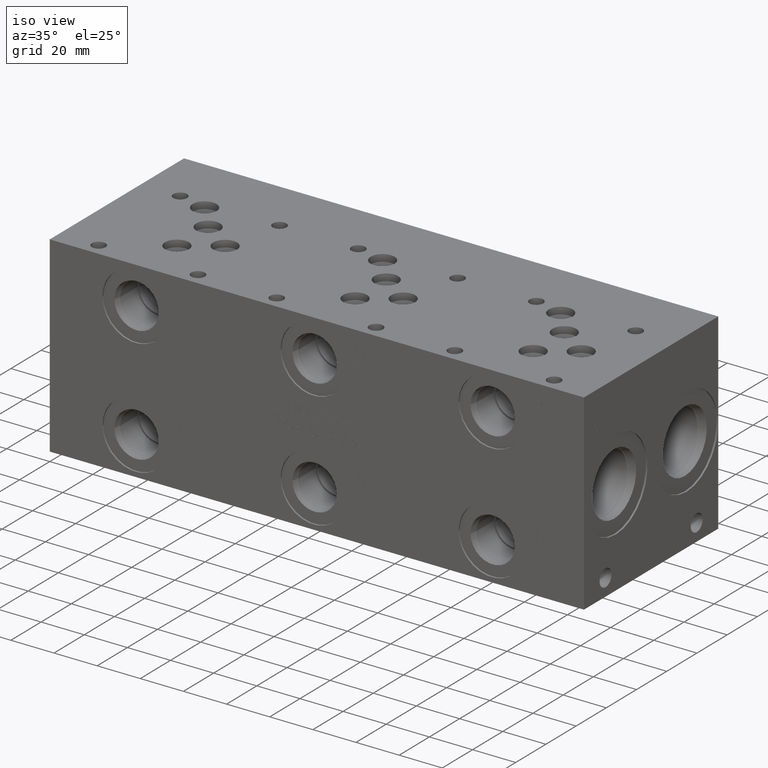
[diagram: clean part render]
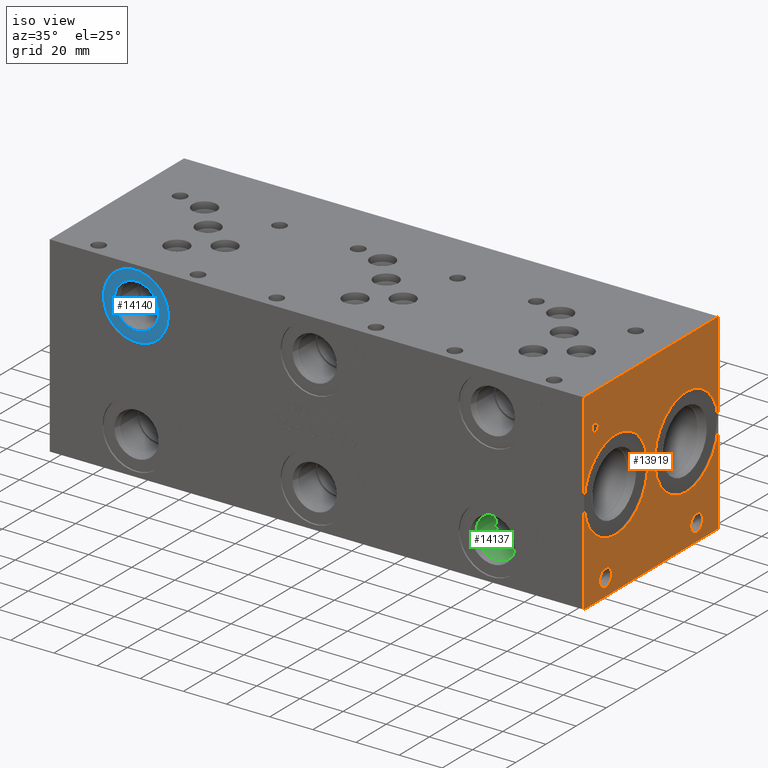
[diagram: same view with three faces highlighted in distinct colors, each labeled with its STEP entity id]
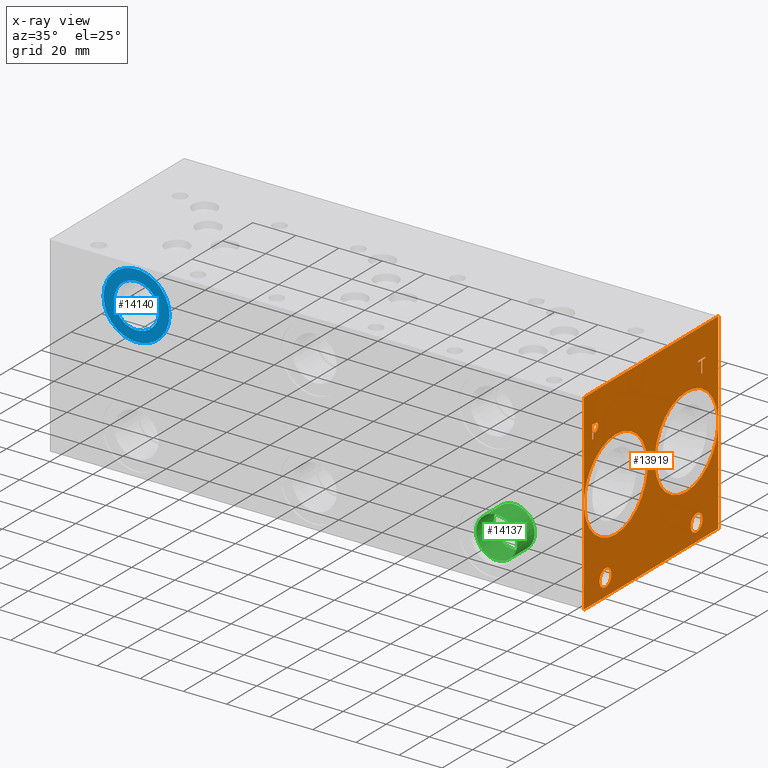
[diagram: x-ray of the same camera — body ghosted, the three highlighted faces saturated]
A machine part, iso view with three faces highlighted in distinct colors.
The next image is the same camera in x-ray (body ghosted, the three faces saturated) — at least one of them is partly hidden behind the body in this view.
Their STEP definitions:

[orange] entity #13919 — the highlighted planar face has unit normal (1, 0, 0).
#369=CIRCLE('',#14537,21.0185);
#370=CIRCLE('',#14538,21.0185);
#371=CIRCLE('',#14539,21.0185);
#372=CIRCLE('',#14540,21.0185);
#373=CIRCLE('',#14541,3.9624);
#374=CIRCLE('',#14542,3.9624);
#375=CIRCLE('',#14543,3.9624);
#376=CIRCLE('',#14544,3.9624);
#1005=B_SPLINE_CURVE_WITH_KNOTS('',2,(#22557,#22558,#22559,#22560),
 .UNSPECIFIED.,.F.,.F.,(3,1,3),(0.,1.,2.),.UNSPECIFIED.);
#1007=B_SPLINE_CURVE_WITH_KNOTS('',2,(#22578,#22579,#22580,#22581),
 .UNSPECIFIED.,.F.,.F.,(3,1,3),(0.,1.,2.),.UNSPECIFIED.);
#1009=B_SPLINE_CURVE_WITH_KNOTS('',2,(#22627,#22628,#22629,#22630),
 .UNSPECIFIED.,.F.,.F.,(3,1,3),(0.,1.,2.),.UNSPECIFIED.);
#1011=B_SPLINE_CURVE_WITH_KNOTS('',2,(#22645,#22646,#22647,#22648),
 .UNSPECIFIED.,.F.,.F.,(3,1,3),(0.,1.,2.),.UNSPECIFIED.);
#1119=FACE_BOUND('',#2414,.T.);
#1120=FACE_BOUND('',#2415,.T.);
#1121=FACE_BOUND('',#2416,.T.);
#1122=FACE_BOUND('',#2417,.T.);
#1123=FACE_BOUND('',#2418,.T.);
#1124=FACE_BOUND('',#2419,.T.);
#1631=FACE_OUTER_BOUND('',#2413,.T.);
#2413=EDGE_LOOP('',(#11025,#11026,#11027,#11028));
#2414=EDGE_LOOP('',(#11029,#11030,#11031,#11032,#11033,#11034,#11035,#11036));
#2415=EDGE_LOOP('',(#11037,#11038));
#2416=EDGE_LOOP('',(#11039,#11040));
#2417=EDGE_LOOP('',(#11041,#11042));
#2418=EDGE_LOOP('',(#11043,#11044));
#2419=EDGE_LOOP('',(#11045,#11046,#11047,#11048,#11049,#11050,#11051,#11052,
#11053));
#2829=LINE('',#18293,#4084);
#3638=LINE('',#22358,#4893);
#3642=LINE('',#22366,#4897);
#3645=LINE('',#22372,#4900);
#3648=LINE('',#22378,#4903);
#3651=LINE('',#22384,#4906);
#3654=LINE('',#22390,#4909);
#3657=LINE('',#22396,#4912);
#3660=LINE('',#22401,#4915);
#3702=LINE('',#22590,#4957);
#3705=LINE('',#22596,#4960);
#3708=LINE('',#22602,#4963);
#3711=LINE('',#22608,#4966);
#3714=LINE('',#22614,#4969);
#3718=LINE('',#22656,#4973);
#3719=LINE('',#22658,#4974);
#3720=LINE('',#22659,#4975);
#4084=VECTOR('',#15207,10.);
#4893=VECTOR('',#16538,10.);
#4897=VECTOR('',#16544,10.);
#4900=VECTOR('',#16549,10.);
#4903=VECTOR('',#16554,10.);
#4906=VECTOR('',#16559,10.);
#4909=VECTOR('',#16564,10.);
#4912=VECTOR('',#16569,10.);
#4915=VECTOR('',#16574,10.);
#4957=VECTOR('',#16644,10.);
#4960=VECTOR('',#16649,10.);
#4963=VECTOR('',#16654,10.);
#4966=VECTOR('',#16659,10.);
#4969=VECTOR('',#16664,10.);
#4973=VECTOR('',#16672,10.);
#4974=VECTOR('',#16673,10.);
#4975=VECTOR('',#16674,10.);
#5328=VERTEX_POINT('',#18290);
#5329=VERTEX_POINT('',#18292);
#6083=VERTEX_POINT('',#22356);
#6084=VERTEX_POINT('',#22357);
#6087=VERTEX_POINT('',#22365);
#6089=VERTEX_POINT('',#22371);
#6091=VERTEX_POINT('',#22377);
#6093=VERTEX_POINT('',#22383);
#6095=VERTEX_POINT('',#22389);
#6097=VERTEX_POINT('',#22395);
#6129=VERTEX_POINT('',#22555);
#6130=VERTEX_POINT('',#22556);
#6133=VERTEX_POINT('',#22577);
#6135=VERTEX_POINT('',#22589);
#6137=VERTEX_POINT('',#22595);
#6139=VERTEX_POINT('',#22601);
#6141=VERTEX_POINT('',#22607);
#6143=VERTEX_POINT('',#22613);
#6145=VERTEX_POINT('',#22626);
#6147=VERTEX_POINT('',#22655);
#6148=VERTEX_POINT('',#22657);
#6149=VERTEX_POINT('',#22660);
#6150=VERTEX_POINT('',#22661);
#6151=VERTEX_POINT('',#22664);
#6152=VERTEX_POINT('',#22665);
#6153=VERTEX_POINT('',#22668);
#6154=VERTEX_POINT('',#22669);
#6155=VERTEX_POINT('',#22672);
#6156=VERTEX_POINT('',#22673);
#6701=EDGE_CURVE('',#5328,#5329,#2829,.T.);
#7808=EDGE_CURVE('',#6083,#6084,#3638,.T.);
#7812=EDGE_CURVE('',#6087,#6083,#3642,.T.);
#7815=EDGE_CURVE('',#6089,#6087,#3645,.T.);
#7818=EDGE_CURVE('',#6091,#6089,#3648,.T.);
#7821=EDGE_CURVE('',#6093,#6091,#3651,.T.);
#7824=EDGE_CURVE('',#6095,#6093,#3654,.T.);
#7827=EDGE_CURVE('',#6097,#6095,#3657,.T.);
#7830=EDGE_CURVE('',#6084,#6097,#3660,.T.);
#7877=EDGE_CURVE('',#6129,#6130,#1005,.T.);
#7881=EDGE_CURVE('',#6133,#6129,#1007,.T.);
#7884=EDGE_CURVE('',#6135,#6133,#3702,.T.);
#7887=EDGE_CURVE('',#6137,#6135,#3705,.T.);
#7890=EDGE_CURVE('',#6139,#6137,#3708,.T.);
#7893=EDGE_CURVE('',#6141,#6139,#3711,.T.);
#7896=EDGE_CURVE('',#6143,#6141,#3714,.T.);
#7899=EDGE_CURVE('',#6145,#6143,#1009,.T.);
#7902=EDGE_CURVE('',#6130,#6145,#1011,.T.);
#7904=EDGE_CURVE('',#5328,#6147,#3718,.T.);
#7905=EDGE_CURVE('',#6147,#6148,#3719,.T.);
#7906=EDGE_CURVE('',#5329,#6148,#3720,.T.);
#7907=EDGE_CURVE('',#6149,#6150,#369,.T.);
#7908=EDGE_CURVE('',#6150,#6149,#370,.T.);
#7909=EDGE_CURVE('',#6151,#6152,#371,.T.);
#7910=EDGE_CURVE('',#6152,#6151,#372,.T.);
#7911=EDGE_CURVE('',#6153,#6154,#373,.T.);
#7912=EDGE_CURVE('',#6154,#6153,#374,.T.);
#7913=EDGE_CURVE('',#6155,#6156,#375,.T.);
#7914=EDGE_CURVE('',#6156,#6155,#376,.T.);
#11025=ORIENTED_EDGE('',*,*,#7904,.T.);
#11026=ORIENTED_EDGE('',*,*,#7905,.T.);
#11027=ORIENTED_EDGE('',*,*,#7906,.F.);
#11028=ORIENTED_EDGE('',*,*,#6701,.F.);
#11029=ORIENTED_EDGE('',*,*,#7808,.T.);
#11030=ORIENTED_EDGE('',*,*,#7830,.T.);
#11031=ORIENTED_EDGE('',*,*,#7827,.T.);
#11032=ORIENTED_EDGE('',*,*,#7824,.T.);
#11033=ORIENTED_EDGE('',*,*,#7821,.T.);
#11034=ORIENTED_EDGE('',*,*,#7818,.T.);
#11035=ORIENTED_EDGE('',*,*,#7815,.T.);
#11036=ORIENTED_EDGE('',*,*,#7812,.T.);
#11037=ORIENTED_EDGE('',*,*,#7907,.T.);
#11038=ORIENTED_EDGE('',*,*,#7908,.T.);
#11039=ORIENTED_EDGE('',*,*,#7909,.T.);
#11040=ORIENTED_EDGE('',*,*,#7910,.T.);
#11041=ORIENTED_EDGE('',*,*,#7911,.T.);
#11042=ORIENTED_EDGE('',*,*,#7912,.T.);
#11043=ORIENTED_EDGE('',*,*,#7913,.T.);
#11044=ORIENTED_EDGE('',*,*,#7914,.T.);
#11045=ORIENTED_EDGE('',*,*,#7877,.T.);
#11046=ORIENTED_EDGE('',*,*,#7902,.T.);
#11047=ORIENTED_EDGE('',*,*,#7899,.T.);
#11048=ORIENTED_EDGE('',*,*,#7896,.T.);
#11049=ORIENTED_EDGE('',*,*,#7893,.T.);
#11050=ORIENTED_EDGE('',*,*,#7890,.T.);
#11051=ORIENTED_EDGE('',*,*,#7887,.T.);
#11052=ORIENTED_EDGE('',*,*,#7884,.T.);
#11053=ORIENTED_EDGE('',*,*,#7881,.T.);
#12868=PLANE('',#14536);
#13919=ADVANCED_FACE('',(#1631,#1119,#1120,#1121,#1122,#1123,#1124),#12868,
 .T.);
#14536=AXIS2_PLACEMENT_3D('',#22654,#16670,#16671);
#14537=AXIS2_PLACEMENT_3D('',#22662,#16675,#16676);
#14538=AXIS2_PLACEMENT_3D('',#22663,#16677,#16678);
#14539=AXIS2_PLACEMENT_3D('',#22666,#16679,#16680);
#14540=AXIS2_PLACEMENT_3D('',#22667,#16681,#16682);
#14541=AXIS2_PLACEMENT_3D('',#22670,#16683,#16684);
#14542=AXIS2_PLACEMENT_3D('',#22671,#16685,#16686);
#14543=AXIS2_PLACEMENT_3D('',#22674,#16687,#16688);
#14544=AXIS2_PLACEMENT_3D('',#22675,#16689,#16690);
#15207=DIRECTION('',(0.,0.,1.));
#16538=DIRECTION('',(0.,-1.,0.));
#16544=DIRECTION('',(0.,0.,-1.));
#16549=DIRECTION('',(0.,-1.,0.));
#16554=DIRECTION('',(0.,0.,-1.));
#16559=DIRECTION('',(0.,1.,0.));
#16564=DIRECTION('',(0.,0.,1.));
#16569=DIRECTION('',(0.,-1.,0.));
#16574=DIRECTION('',(0.,0.,1.));
#16644=DIRECTION('',(0.,1.,0.));
#16649=DIRECTION('',(0.,0.,1.));
#16654=DIRECTION('',(0.,-1.,0.));
#16659=DIRECTION('',(0.,0.,-1.));
#16664=DIRECTION('',(0.,-1.,0.));
#16670=DIRECTION('center_axis',(1.,0.,0.));
#16671=DIRECTION('ref_axis',(0.,1.,0.));
#16672=DIRECTION('',(0.,1.,0.));
#16673=DIRECTION('',(0.,0.,1.));
#16674=DIRECTION('',(0.,1.,0.));
#16675=DIRECTION('center_axis',(-1.,0.,0.));
#16676=DIRECTION('ref_axis',(0.,0.,-1.));
#16677=DIRECTION('center_axis',(-1.,0.,0.));
#16678=DIRECTION('ref_axis',(0.,0.,-1.));
#16679=DIRECTION('center_axis',(-1.,0.,0.));
#16680=DIRECTION('ref_axis',(0.,0.,-1.));
#16681=DIRECTION('center_axis',(-1.,0.,0.));
#16682=DIRECTION('ref_axis',(0.,0.,-1.));
#16683=DIRECTION('center_axis',(-1.,0.,0.));
#16684=DIRECTION('ref_axis',(0.,1.,0.));
#16685=DIRECTION('center_axis',(-1.,0.,0.));
#16686=DIRECTION('ref_axis',(0.,1.,0.));
#16687=DIRECTION('center_axis',(-1.,0.,0.));
#16688=DIRECTION('ref_axis',(0.,1.,0.));
#16689=DIRECTION('center_axis',(-1.,0.,0.));
#16690=DIRECTION('ref_axis',(0.,1.,0.));
#18290=CARTESIAN_POINT('',(247.65,0.,0.));
#18292=CARTESIAN_POINT('',(247.65,0.,88.9));
#18293=CARTESIAN_POINT('',(247.65,0.,0.));
#22356=CARTESIAN_POINT('',(247.65,78.375415271453,69.05625));
#22357=CARTESIAN_POINT('',(247.65,77.5314930799135,69.05625));
#22358=CARTESIAN_POINT('',(247.65,39.1877076357265,69.05625));
#22365=CARTESIAN_POINT('',(247.65,78.375415271453,74.6549533194816));
#22366=CARTESIAN_POINT('',(247.65,78.375415271453,37.3274766597408));
#22371=CARTESIAN_POINT('',(247.65,80.5058042183881,74.6549533194816));
#22372=CARTESIAN_POINT('',(247.65,40.252902109194,74.6549533194816));
#22377=CARTESIAN_POINT('',(247.65,80.5058042183881,75.4062499046326));
#22378=CARTESIAN_POINT('',(247.65,80.5058042183881,37.7031249523163));
#22383=CARTESIAN_POINT('',(247.65,75.4011041329784,75.4062499046326));
#22384=CARTESIAN_POINT('',(247.65,37.7005520664892,75.4062499046326));
#22389=CARTESIAN_POINT('',(247.65,75.4011041329784,74.6549533194816));
#22390=CARTESIAN_POINT('',(247.65,75.4011041329784,37.3274766597408));
#22395=CARTESIAN_POINT('',(247.65,77.5314930799135,74.6549533194816));
#22396=CARTESIAN_POINT('',(247.65,38.7657465399567,74.6549533194816));
#22401=CARTESIAN_POINT('',(247.65,77.5314930799135,34.528125));
#22555=CARTESIAN_POINT('',(247.65,8.66306720235939,75.0100181439707));
#22556=CARTESIAN_POINT('',(247.65,9.41950965453199,73.491987372604));
#22557=CARTESIAN_POINT('Ctrl Pts',(247.65,8.66306720235939,75.0100181439707));
#22558=CARTESIAN_POINT('Ctrl Pts',(247.65,9.01813202684857,74.7681623939564));
#22559=CARTESIAN_POINT('Ctrl Pts',(247.65,9.41950965453199,74.0220116758269));
#22560=CARTESIAN_POINT('Ctrl Pts',(247.65,9.41950965453199,73.491987372604));
#22577=CARTESIAN_POINT('',(247.65,7.0009521543883,75.4062499046326));
#22578=CARTESIAN_POINT('Ctrl Pts',(247.65,7.0009521543883,75.4062499046326));
#22579=CARTESIAN_POINT('Ctrl Pts',(247.65,7.56699752676236,75.4062499046326));
#22580=CARTESIAN_POINT('Ctrl Pts',(247.65,8.35946104808603,75.2209986918556));
#22581=CARTESIAN_POINT('Ctrl Pts',(247.65,8.66306720235939,75.0100181439707));
#22589=CARTESIAN_POINT('',(247.65,5.40573337769779,75.4062499046326));
#22590=CARTESIAN_POINT('',(247.65,2.70286668884889,75.4062499046326));
#22595=CARTESIAN_POINT('',(247.65,5.40573337769779,69.05625));
#22596=CARTESIAN_POINT('',(247.65,5.40573337769779,34.528125));
#22601=CARTESIAN_POINT('',(247.65,6.24965556923729,69.05625));
#22602=CARTESIAN_POINT('',(247.65,3.12482778461864,69.05625));
#22607=CARTESIAN_POINT('',(247.65,6.24965556923729,71.4233488299279));
#22608=CARTESIAN_POINT('',(247.65,6.24965556923729,35.7116744149639));
#22613=CARTESIAN_POINT('',(247.65,6.96493108523723,71.4233488299279));
#22614=CARTESIAN_POINT('',(247.65,3.48246554261861,71.4233488299279));
#22626=CARTESIAN_POINT('',(247.65,8.8637560162011,72.0820198086904));
#22627=CARTESIAN_POINT('Ctrl Pts',(247.65,8.8637560162011,72.0820198086904));
#22628=CARTESIAN_POINT('Ctrl Pts',(247.65,8.53442052681983,71.7578301863307));
#22629=CARTESIAN_POINT('Ctrl Pts',(247.65,7.64418553208609,71.4233488299279));
#22630=CARTESIAN_POINT('Ctrl Pts',(247.65,6.96493108523723,71.4233488299279));
#22645=CARTESIAN_POINT('Ctrl Pts',(247.65,9.41950965453199,73.491987372604));
#22646=CARTESIAN_POINT('Ctrl Pts',(247.65,9.41950965453199,73.0803180108774));
#22647=CARTESIAN_POINT('Ctrl Pts',(247.65,9.1261952343018,72.3393131597695));
#22648=CARTESIAN_POINT('Ctrl Pts',(247.65,8.8637560162011,72.0820198086904));
#22654=CARTESIAN_POINT('Origin',(247.65,0.,0.));
#22655=CARTESIAN_POINT('',(247.65,88.9,0.));
#22656=CARTESIAN_POINT('',(247.65,0.,0.));
#22657=CARTESIAN_POINT('',(247.65,88.9,88.9));
#22658=CARTESIAN_POINT('',(247.65,88.9,0.));
#22659=CARTESIAN_POINT('',(247.65,0.,88.9));
#22660=CARTESIAN_POINT('',(247.65,21.082,23.4315));
#22661=CARTESIAN_POINT('',(247.65,21.082,65.4685));
#22662=CARTESIAN_POINT('Origin',(247.65,21.082,44.45));
#22663=CARTESIAN_POINT('Origin',(247.65,21.082,44.45));
#22664=CARTESIAN_POINT('',(247.65,67.818,23.4315));
#22665=CARTESIAN_POINT('',(247.65,67.818,65.4685));
#22666=CARTESIAN_POINT('Origin',(247.65,67.818,44.45));
#22667=CARTESIAN_POINT('Origin',(247.65,67.818,44.45));
#22668=CARTESIAN_POINT('',(247.65,78.5876,7.9248));
#22669=CARTESIAN_POINT('',(247.65,70.6628,7.9248));
#22670=CARTESIAN_POINT('Origin',(247.65,74.6252,7.9248));
#22671=CARTESIAN_POINT('Origin',(247.65,74.6252,7.9248));
#22672=CARTESIAN_POINT('',(247.65,18.2372,7.9248));
#22673=CARTESIAN_POINT('',(247.65,10.3124,7.9248));
#22674=CARTESIAN_POINT('Origin',(247.65,14.2748,7.9248));
#22675=CARTESIAN_POINT('Origin',(247.65,14.2748,7.9248));

[blue] entity #14140 — the highlighted planar face has unit normal (0, 1, 0).
#571=CIRCLE('',#14923,15.3162);
#572=CIRCLE('',#14924,15.3162);
#573=CIRCLE('',#14926,10.2997);
#574=CIRCLE('',#14927,10.2997);
#1161=FACE_BOUND('',#2677,.T.);
#1852=FACE_OUTER_BOUND('',#2676,.T.);
#2676=EDGE_LOOP('',(#12142,#12143));
#2677=EDGE_LOOP('',(#12144,#12145));
#6503=VERTEX_POINT('',#24191);
#6504=VERTEX_POINT('',#24193);
#6505=VERTEX_POINT('',#24197);
#6506=VERTEX_POINT('',#24198);
#8433=EDGE_CURVE('',#6503,#6504,#571,.T.);
#8434=EDGE_CURVE('',#6504,#6503,#572,.T.);
#8435=EDGE_CURVE('',#6505,#6506,#573,.T.);
#8436=EDGE_CURVE('',#6506,#6505,#574,.T.);
#12142=ORIENTED_EDGE('',*,*,#8434,.F.);
#12143=ORIENTED_EDGE('',*,*,#8433,.F.);
#12144=ORIENTED_EDGE('',*,*,#8435,.T.);
#12145=ORIENTED_EDGE('',*,*,#8436,.T.);
#12954=PLANE('',#14925);
#14140=ADVANCED_FACE('',(#1852,#1161),#12954,.F.);
#14923=AXIS2_PLACEMENT_3D('',#24194,#17711,#17712);
#14924=AXIS2_PLACEMENT_3D('',#24195,#17713,#17714);
#14925=AXIS2_PLACEMENT_3D('',#24196,#17715,#17716);
#14926=AXIS2_PLACEMENT_3D('',#24199,#17717,#17718);
#14927=AXIS2_PLACEMENT_3D('',#24200,#17719,#17720);
#17711=DIRECTION('center_axis',(0.,1.,0.));
#17712=DIRECTION('ref_axis',(1.,0.,0.));
#17713=DIRECTION('center_axis',(0.,1.,0.));
#17714=DIRECTION('ref_axis',(1.,0.,0.));
#17715=DIRECTION('center_axis',(0.,1.,0.));
#17716=DIRECTION('ref_axis',(0.,0.,1.));
#17717=DIRECTION('center_axis',(0.,1.,0.));
#17718=DIRECTION('ref_axis',(1.,0.,0.));
#17719=DIRECTION('center_axis',(0.,1.,0.));
#17720=DIRECTION('ref_axis',(1.,0.,0.));
#24191=CARTESIAN_POINT('',(24.3586,0.7874,71.4248));
#24193=CARTESIAN_POINT('',(54.991,0.7874,71.4248));
#24194=CARTESIAN_POINT('Origin',(39.6748,0.7874,71.4248));
#24195=CARTESIAN_POINT('Origin',(39.6748,0.7874,71.4248));
#24196=CARTESIAN_POINT('Origin',(49.9745,0.7874,71.4248));
#24197=CARTESIAN_POINT('',(49.9745,0.7874,71.4248));
#24198=CARTESIAN_POINT('',(29.3751,0.787400000000001,71.4248));
#24199=CARTESIAN_POINT('Origin',(39.6748,0.7874,71.4248));
#24200=CARTESIAN_POINT('Origin',(39.6748,0.7874,71.4248));

[green] entity #14137 — the highlighted cylindrical surface (bore or boss wall) has radius 9.525 mm, axis along (0, -1, 0).
#136=CYLINDRICAL_SURFACE('',#14920,9.525);
#393=CIRCLE('',#14628,9.525);
#568=CIRCLE('',#14917,9.525);
#569=CIRCLE('',#14918,9.525);
#1849=FACE_OUTER_BOUND('',#2673,.T.);
#2673=EDGE_LOOP('',(#12126,#12127,#12128,#12129,#12130));
#3982=LINE('',#24187,#5237);
#5237=VECTOR('',#17704,9.525);
#6311=VERTEX_POINT('',#23609);
#6500=VERTEX_POINT('',#24180);
#6501=VERTEX_POINT('',#24181);
#8160=EDGE_CURVE('',#6311,#6311,#393,.T.);
#8427=EDGE_CURVE('',#6500,#6501,#568,.T.);
#8428=EDGE_CURVE('',#6501,#6500,#569,.T.);
#8430=EDGE_CURVE('',#6311,#6501,#3982,.T.);
#12126=ORIENTED_EDGE('',*,*,#8160,.T.);
#12127=ORIENTED_EDGE('',*,*,#8430,.T.);
#12128=ORIENTED_EDGE('',*,*,#8427,.F.);
#12129=ORIENTED_EDGE('',*,*,#8428,.F.);
#12130=ORIENTED_EDGE('',*,*,#8430,.F.);
#14137=ADVANCED_FACE('',(#1849),#136,.F.);
#14628=AXIS2_PLACEMENT_3D('',#23611,#17026,#17027);
#14917=AXIS2_PLACEMENT_3D('',#24182,#17696,#17697);
#14918=AXIS2_PLACEMENT_3D('',#24183,#17698,#17699);
#14920=AXIS2_PLACEMENT_3D('',#24186,#17702,#17703);
#17026=DIRECTION('center_axis',(0.,-1.,0.));
#17027=DIRECTION('ref_axis',(1.,0.,0.));
#17696=DIRECTION('center_axis',(0.,-1.,0.));
#17697=DIRECTION('ref_axis',(1.,0.,0.));
#17698=DIRECTION('center_axis',(0.,-1.,0.));
#17699=DIRECTION('ref_axis',(1.,0.,0.));
#17702=DIRECTION('center_axis',(0.,-1.,0.));
#17703=DIRECTION('ref_axis',(1.,0.,0.));
#17704=DIRECTION('',(0.,1.,0.));
#23609=CARTESIAN_POINT('',(195.2498,3.4036,17.4752));
#23611=CARTESIAN_POINT('Origin',(204.7748,3.4036,17.4752));
#24180=CARTESIAN_POINT('',(214.2998,15.0622,17.4752));
#24181=CARTESIAN_POINT('',(195.2498,15.0622,17.4752));
#24182=CARTESIAN_POINT('Origin',(204.7748,15.0622,17.4752));
#24183=CARTESIAN_POINT('Origin',(204.7748,15.0622,17.4752));
#24186=CARTESIAN_POINT('Origin',(204.7748,7.5311,17.4752));
#24187=CARTESIAN_POINT('',(195.2498,7.5311,17.4752));